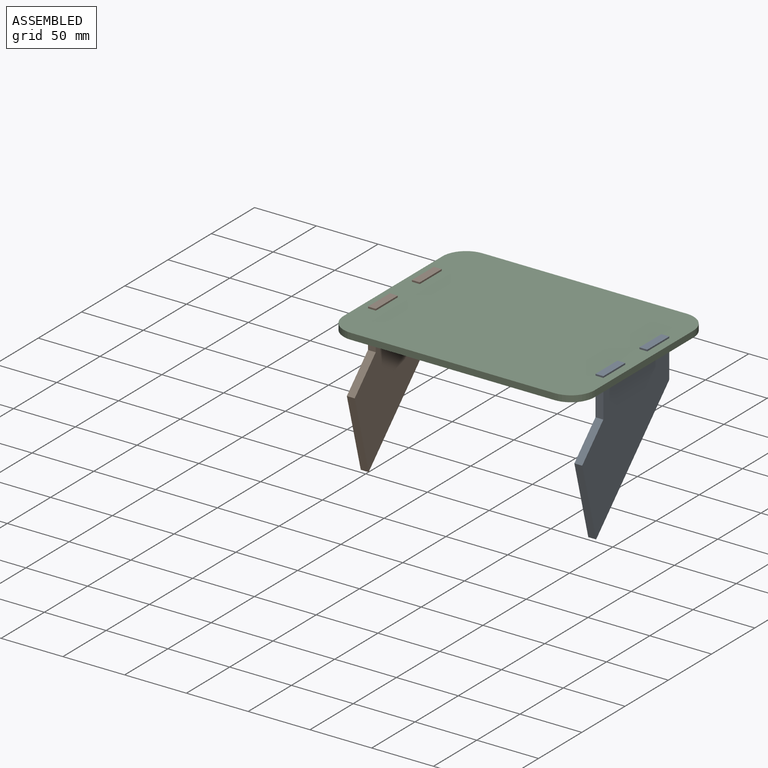
[diagram: assembled view]
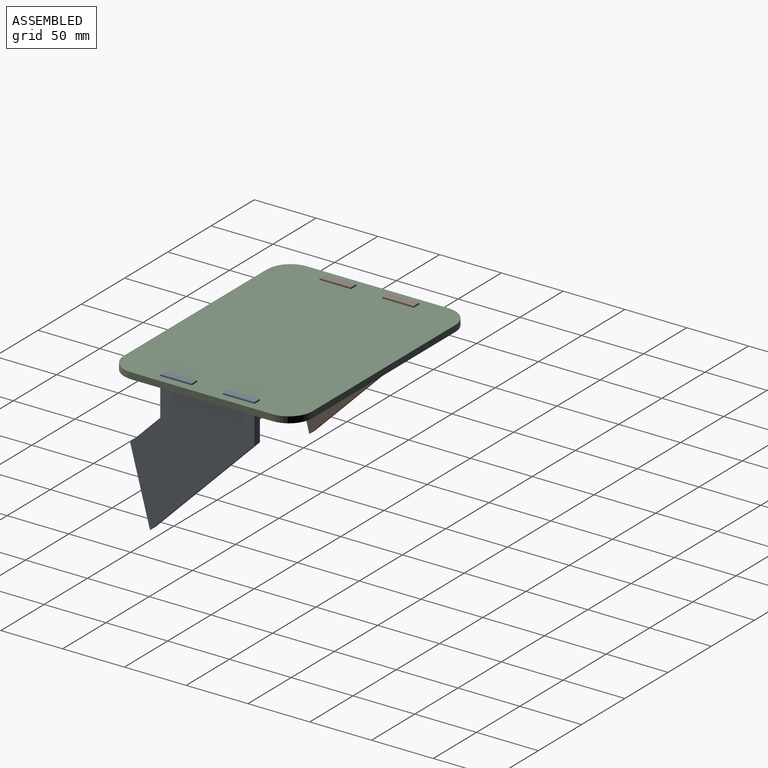
[diagram: assembled view, second angle]
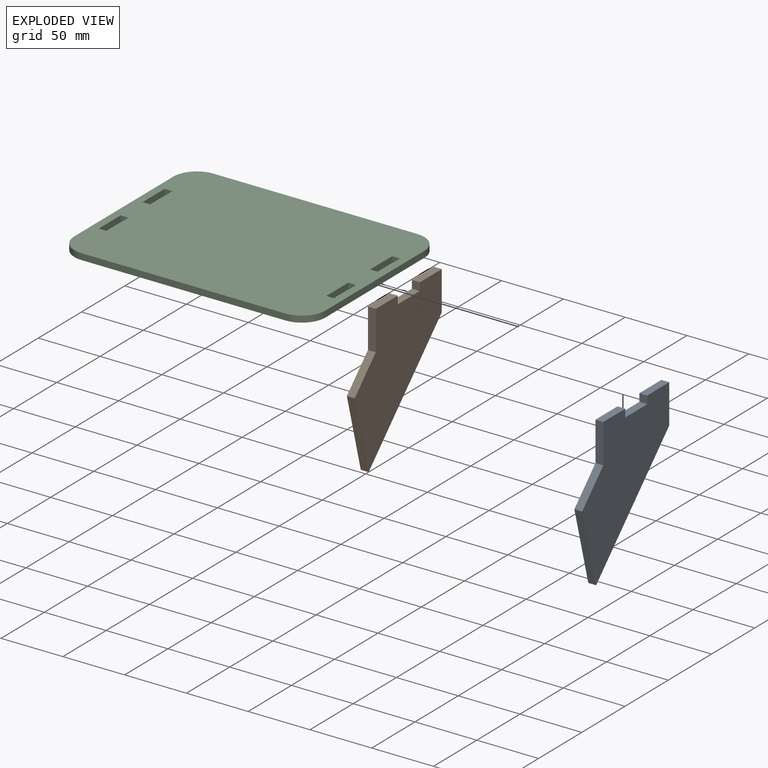
[diagram: exploded view]
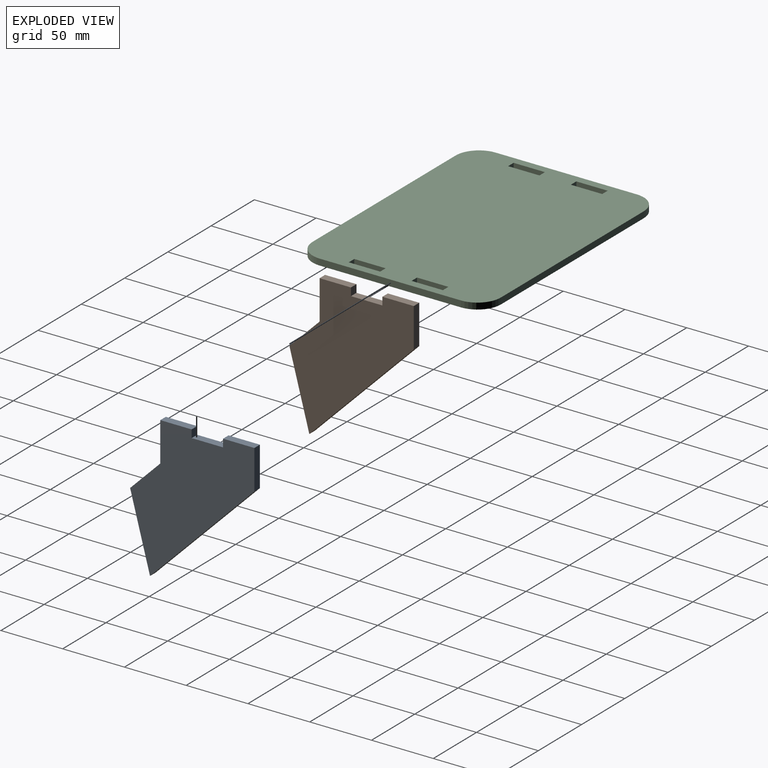
[diagram: exploded view, second angle]
ASSEMBLY  parts=3 mates=2
PART A: 12 faces, bbox 6.4x100.6x116.3 mm
  f0: plane 25.4x6.35mm, normal (0,0,1), area 161.3mm2, adj f1,f3,f5,f7
  f1: plane 116.26x100.61mm, normal (-1,0,0), area 6408mm2, adj f0,f2,f4,f5,f6,f7,f8,f9
  f2: plane 31.75x6.35mm, normal (0,1,0), area 201.6mm2, adj f1,f3,f6,f9
  f3: plane 116.26x100.61mm, normal (1,0,0), area 6408mm2, adj f0,f2,f4,f5,f6,f7,f8,f9
  f4: plane 31.75x6.35mm, normal (0,-1,0), area 201.6mm2, adj f1,f3,f8,f11
  f5: plane 6.35x6.35mm, normal (0,-1,0), area 40.3mm2, adj f0,f1,f3,f6
  f6: plane 25.4x6.35mm, normal (0,0,1), area 161.3mm2, adj f1,f2,f3,f5
  f7: plane 6.35x6.35mm, normal (0,1,0), area 40.3mm2, adj f0,f1,f3,f8
  f8: plane 25.4x6.35mm, normal (0,0,1), area 161.3mm2, adj f1,f3,f4,f7
  f9: plane 84.51x84.51mm, normal (0,0.71,-0.71), area 758.9mm2, adj f1,f2,f3,f10
  f10: plane 60.1x16.1mm, normal (0,-0.97,-0.26), area 395.1mm2, adj f1,f3,f9,f11
  f11: plane 24.41x24.41mm, normal (0,-0.71,0.71), area 219.2mm2, adj f1,f3,f4,f10
PART B: same geometry as A
PART C: 26 faces, bbox 203.2x152.4x5.1 mm
  f0: plane 114.3x5.08mm, normal (-1,0,0), area 580.6mm2, adj f4,f5,f6,f9
  f1: plane 165.1x5.08mm, normal (0,-1,0), area 838.7mm2, adj f4,f5,f6,f7
  f2: plane 114.3x5.08mm, normal (1,0,0), area 580.6mm2, adj f4,f5,f7,f8
  f3: plane 165.1x5.08mm, normal (0,1,0), area 838.7mm2, adj f4,f5,f8,f9
  f4: plane 203.2x152.4mm, normal (0,0,1), area 30011mm2, adj f0,f1,f2,f3,f6,f7,f8,f9
  f5: plane 203.2x152.4mm, normal (0,0,-1), area 30011mm2, adj f0,f1,f2,f3,f6,f7,f8,f9
  f6: cylinder r=19.05mm len=19.05mm, axis (0,0,1), area 152mm2, adj f0,f1,f4,f5
  f7: cylinder r=19.05mm len=19.05mm, axis (0,0,-1), area 152mm2, adj f1,f2,f4,f5
  f8: cylinder r=19.05mm len=19.05mm, axis (0,0,1), area 152mm2, adj f2,f3,f4,f5
  f9: cylinder r=19.05mm len=19.05mm, axis (0,0,-1), area 152mm2, adj f0,f3,f4,f5
  f10: plane 25.4x5.08mm, normal (1,0,0), area 129mm2, adj f4,f5,f11,f12
  f11: plane 6.35x5.08mm, normal (0,-1,0), area 32.3mm2, adj f4,f5,f10,f13
  f12: plane 6.35x5.08mm, normal (0,1,0), area 32.3mm2, adj f4,f5,f10,f13
  f13: plane 25.4x5.08mm, normal (-1,0,0), area 129mm2, adj f4,f5,f11,f12
  f14: plane 25.4x5.08mm, normal (-1,0,0), area 129mm2, adj f4,f5,f15,f16
  f15: plane 6.35x5.08mm, normal (0,1,0), area 32.3mm2, adj f4,f5,f14,f17
  f16: plane 6.35x5.08mm, normal (0,-1,0), area 32.3mm2, adj f4,f5,f14,f17
  f17: plane 25.4x5.08mm, normal (1,0,0), area 129mm2, adj f4,f5,f15,f16
  f18: plane 25.4x5.08mm, normal (1,0,0), area 129mm2, adj f4,f5,f19,f20
  f19: plane 6.35x5.08mm, normal (0,-1,0), area 32.3mm2, adj f4,f5,f18,f21
  f20: plane 6.35x5.08mm, normal (0,1,0), area 32.3mm2, adj f4,f5,f18,f21
  f21: plane 25.4x5.08mm, normal (-1,0,0), area 129mm2, adj f4,f5,f19,f20
  f22: plane 25.4x5.08mm, normal (-1,0,0), area 129mm2, adj f4,f5,f23,f24
  f23: plane 6.35x5.08mm, normal (0,1,0), area 32.3mm2, adj f4,f5,f22,f25
  f24: plane 6.35x5.08mm, normal (0,-1,0), area 32.3mm2, adj f4,f5,f22,f25
  f25: plane 25.4x5.08mm, normal (1,0,0), area 129mm2, adj f4,f5,f23,f24
PLACE A t=(169.5,-16.45,2.03)mm
PLACE B t=(-14.65,-16.45,2.03)mm
PLACE C t=(-14.65,-16.45,0.76)mm
MATE fastened B.f0 <-> C.f5  axis (0,0,1) through (-106.73,-3.75,0.76)mm
MATE fastened A.f0 <-> C.f5  axis (0,0,1) through (77.42,-3.75,0.76)mm
